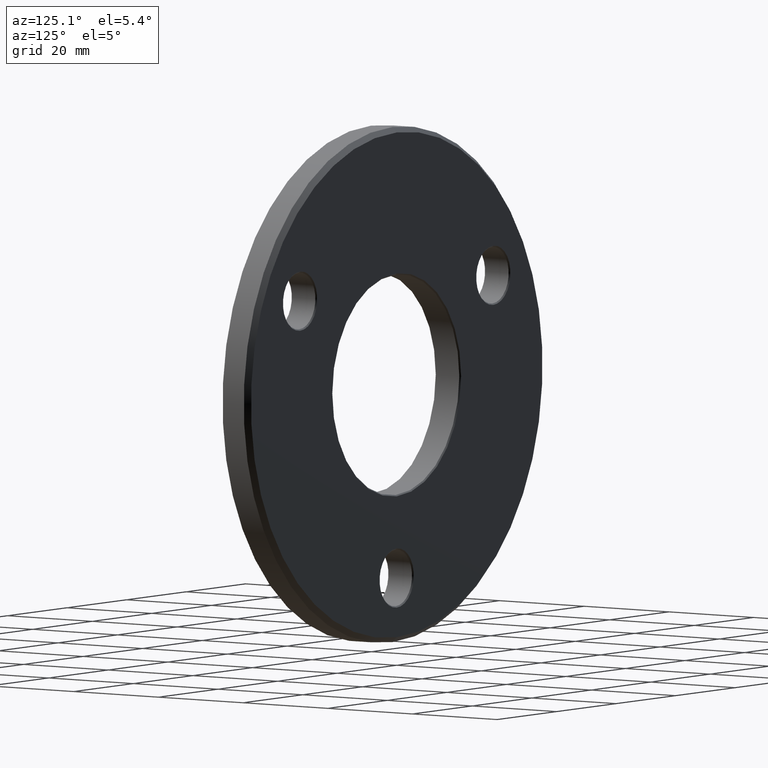
[diagram: clean part render]
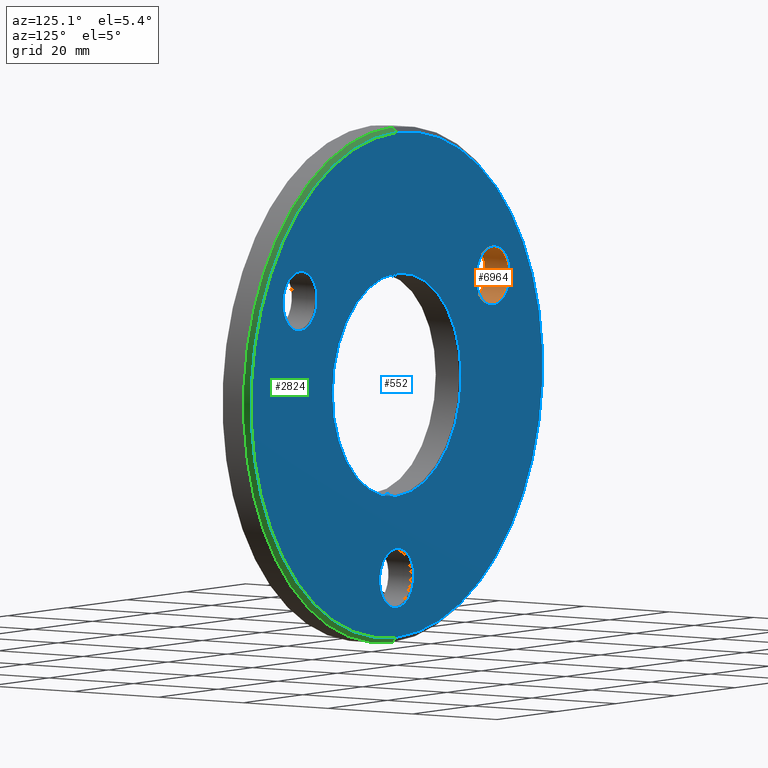
[diagram: same view with three faces highlighted in distinct colors, each labeled with its STEP entity id]
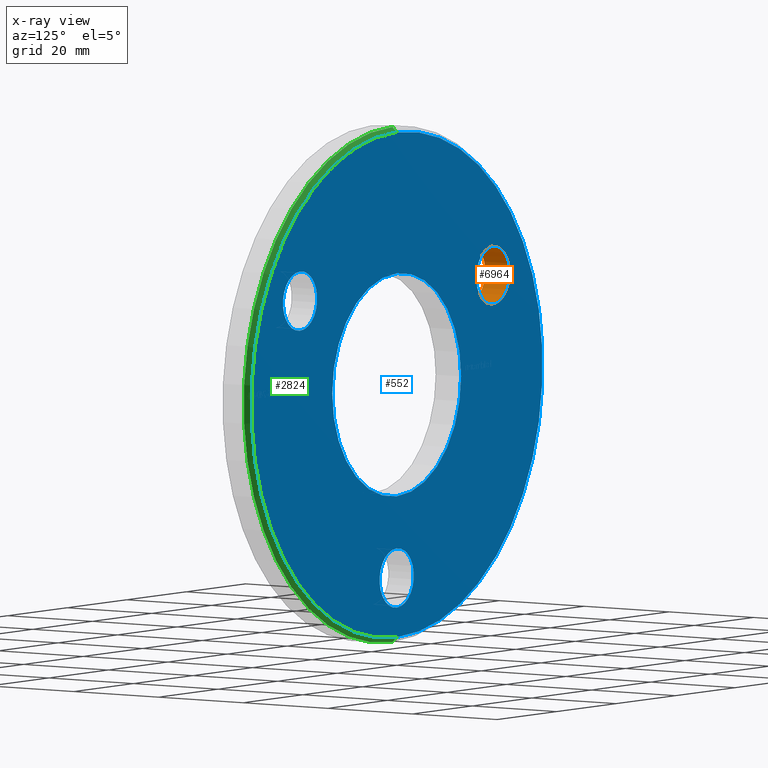
[diagram: x-ray of the same camera — body ghosted, the three highlighted faces saturated]
A machine part, auxiliary view with three faces highlighted in distinct colors.
The next image is the same camera in x-ray (body ghosted, the three faces saturated) — at least one of them is partly hidden behind the body in this view.
Their STEP definitions:

[orange] entity #6964 — the highlighted cylindrical surface (edge-blend (fillet) strip) has radius 5.5 mm, axis along (-0, -1, -0).
#223 = LINE ( 'NONE', #729, #6857 ) ;
#261 = CARTESIAN_POINT ( 'NONE',  ( -32.47595264191643594, 0.2499999999999941436, 24.25000000000001421 ) ) ;
#729 = CARTESIAN_POINT ( 'NONE',  ( -32.47595264191643594, 6.000000000000000000, 13.25000000000002132 ) ) ;
#1257 = ORIENTED_EDGE ( 'NONE', *, *, #4962, .T. ) ;
#1948 = EDGE_CURVE ( 'NONE', #6976, #5661, #223, .T. ) ;
#2450 = ORIENTED_EDGE ( 'NONE', *, *, #6777, .T. ) ;
#3217 = DIRECTION ( 'NONE',  ( -0.000000000000000000, -1.000000000000000000, -0.000000000000000000 ) ) ;
#3298 = EDGE_LOOP ( 'NONE', ( #1257, #2450, #4837, #5366 ) ) ;
#3612 = VERTEX_POINT ( 'NONE', #261 ) ;
#4291 = CARTESIAN_POINT ( 'NONE',  ( -32.47595264191643594, 5.749999999999985789, 13.25000000000002132 ) ) ;
#4694 = AXIS2_PLACEMENT_3D ( 'NONE', #5230, #12899, #12992 ) ;
#4767 = VERTEX_POINT ( 'NONE', #11209 ) ;
#4800 = CARTESIAN_POINT ( 'NONE',  ( -32.47595264191643594, 0.2499999999999941436, 13.25000000000002132 ) ) ;
#4837 = ORIENTED_EDGE ( 'NONE', *, *, #13107, .T. ) ;
#4962 = EDGE_CURVE ( 'NONE', #6976, #4767, #12146, .T. ) ;
#5230 = CARTESIAN_POINT ( 'NONE',  ( -32.47595264191643594, 6.000000000000000000, 18.75000000000001776 ) ) ;
#5349 = VECTOR ( 'NONE', #6043, 1000.000000000000000 ) ;
#5359 = DIRECTION ( 'NONE',  ( 0.000000000000000000, 1.000000000000000000, 0.000000000000000000 ) ) ;
#5366 = ORIENTED_EDGE ( 'NONE', *, *, #1948, .F. ) ;
#5508 = AXIS2_PLACEMENT_3D ( 'NONE', #11922, #5359, #14139 ) ;
#5661 = VERTEX_POINT ( 'NONE', #4800 ) ;
#5688 = FACE_OUTER_BOUND ( 'NONE', #3298, .T. ) ;
#6043 = DIRECTION ( 'NONE',  ( -0.000000000000000000, -1.000000000000000000, -0.000000000000000000 ) ) ;
#6777 = EDGE_CURVE ( 'NONE', #4767, #3612, #6870, .T. ) ;
#6857 = VECTOR ( 'NONE', #3217, 1000.000000000000000 ) ;
#6870 = LINE ( 'NONE', #9405, #5349 ) ;
#6964 = ADVANCED_FACE ( 'NONE', ( #5688 ), #12028, .F. ) ;
#6976 = VERTEX_POINT ( 'NONE', #4291 ) ;
#9150 = CIRCLE ( 'NONE', #13025, 5.499999999999998224 ) ;
#9405 = CARTESIAN_POINT ( 'NONE',  ( -32.47595264191643594, 6.000000000000000000, 24.25000000000001421 ) ) ;
#11209 = CARTESIAN_POINT ( 'NONE',  ( -32.47595264191643594, 5.749999999999985789, 24.25000000000001421 ) ) ;
#11922 = CARTESIAN_POINT ( 'NONE',  ( -32.47595264191643594, 5.749999999999985789, 18.75000000000001776 ) ) ;
#12028 = CYLINDRICAL_SURFACE ( 'NONE', #4694, 5.499999999999996447 ) ;
#12146 = CIRCLE ( 'NONE', #5508, 5.499999999999998224 ) ;
#12812 = CARTESIAN_POINT ( 'NONE',  ( -32.47595264191643594, 0.2499999999999941436, 18.75000000000001776 ) ) ;
#12868 = DIRECTION ( 'NONE',  ( 0.000000000000000000, 0.000000000000000000, 1.000000000000000000 ) ) ;
#12899 = DIRECTION ( 'NONE',  ( -0.000000000000000000, -1.000000000000000000, -0.000000000000000000 ) ) ;
#12992 = DIRECTION ( 'NONE',  ( 0.000000000000000000, 0.000000000000000000, -1.000000000000000000 ) ) ;
#13025 = AXIS2_PLACEMENT_3D ( 'NONE', #12812, #14023, #12868 ) ;
#13107 = EDGE_CURVE ( 'NONE', #3612, #5661, #9150, .T. ) ;
#14023 = DIRECTION ( 'NONE',  ( -0.000000000000000000, -1.000000000000000000, -0.000000000000000000 ) ) ;
#14139 = DIRECTION ( 'NONE',  ( 0.000000000000000000, 0.000000000000000000, 1.000000000000000000 ) ) ;

[blue] entity #552 — the highlighted planar face has unit normal (0, 1, 0).
#76 = ORIENTED_EDGE ( 'NONE', *, *, #4931, .T. ) ;
#278 = DIRECTION ( 'NONE',  ( -0.000000000000000000, -1.000000000000000000, -0.000000000000000000 ) ) ;
#378 = CIRCLE ( 'NONE', #1521, 21.65000000000000213 ) ;
#382 = CARTESIAN_POINT ( 'NONE',  ( 0.000000000000000000, 6.000000000000000000, 0.000000000000000000 ) ) ;
#552 = ADVANCED_FACE ( 'NONE', ( #9009, #12258, #12756, #12425, #13294 ), #7073, .T. ) ;
#839 = CIRCLE ( 'NONE', #12655, 5.750000000000018652 ) ;
#1080 = DIRECTION ( 'NONE',  ( -0.000000000000000000, -1.000000000000000000, -0.000000000000000000 ) ) ;
#1117 = VERTEX_POINT ( 'NONE', #13926 ) ;
#1312 = DIRECTION ( 'NONE',  ( 0.000000000000000000, 0.000000000000000000, 1.000000000000000000 ) ) ;
#1466 = DIRECTION ( 'NONE',  ( 0.000000000000000000, 0.000000000000000000, 1.000000000000000000 ) ) ;
#1468 = EDGE_CURVE ( 'NONE', #13844, #13839, #6167, .T. ) ;
#1521 = AXIS2_PLACEMENT_3D ( 'NONE', #11017, #4470, #10120 ) ;
#1572 = ORIENTED_EDGE ( 'NONE', *, *, #7983, .T. ) ;
#1579 = DIRECTION ( 'NONE',  ( -0.000000000000000000, -1.000000000000000000, -0.000000000000000000 ) ) ;
#2121 = CARTESIAN_POINT ( 'NONE',  ( 0.000000000000000000, 6.000000000000000000, -31.74999999999997868 ) ) ;
#2315 = ORIENTED_EDGE ( 'NONE', *, *, #4698, .T. ) ;
#2417 = AXIS2_PLACEMENT_3D ( 'NONE', #13917, #3091, #12952 ) ;
#2885 = ORIENTED_EDGE ( 'NONE', *, *, #5135, .T. ) ;
#2926 = DIRECTION ( 'NONE',  ( 0.000000000000000000, 0.000000000000000000, 1.000000000000000000 ) ) ;
#2947 = AXIS2_PLACEMENT_3D ( 'NONE', #3219, #1080, #5417 ) ;
#3034 = ORIENTED_EDGE ( 'NONE', *, *, #10121, .T. ) ;
#3091 = DIRECTION ( 'NONE',  ( -0.000000000000000000, -1.000000000000000000, -0.000000000000000000 ) ) ;
#3144 = CARTESIAN_POINT ( 'NONE',  ( 6.062001655779400089E-15, 6.000000000000000000, 49.00000000000002132 ) ) ;
#3219 = CARTESIAN_POINT ( 'NONE',  ( 32.47595264191645015, 6.000000000000000000, 18.74999999999999645 ) ) ;
#3320 = AXIS2_PLACEMENT_3D ( 'NONE', #6549, #5404, #6452 ) ;
#3326 = CARTESIAN_POINT ( 'NONE',  ( 0.000000000000000000, 6.000000000000000000, -37.50000000000000000 ) ) ;
#3676 = EDGE_CURVE ( 'NONE', #13839, #13844, #13365, .T. ) ;
#3828 = DIRECTION ( 'NONE',  ( -0.000000000000000000, -1.000000000000000000, -0.000000000000000000 ) ) ;
#3878 = CARTESIAN_POINT ( 'NONE',  ( 0.000000000000000000, 6.000000000000000000, 0.000000000000000000 ) ) ;
#4125 = CIRCLE ( 'NONE', #9888, 5.750000000000018652 ) ;
#4138 = AXIS2_PLACEMENT_3D ( 'NONE', #10151, #5685, #13354 ) ;
#4470 = DIRECTION ( 'NONE',  ( -0.000000000000000000, -1.000000000000000000, -0.000000000000000000 ) ) ;
#4499 = ORIENTED_EDGE ( 'NONE', *, *, #5952, .T. ) ;
#4606 = ORIENTED_EDGE ( 'NONE', *, *, #10199, .T. ) ;
#4641 = VERTEX_POINT ( 'NONE', #7759 ) ;
#4698 = EDGE_CURVE ( 'NONE', #7713, #6718, #839, .T. ) ;
#4733 = EDGE_LOOP ( 'NONE', ( #11326, #9593 ) ) ;
#4769 = CIRCLE ( 'NONE', #3320, 5.750000000000018652 ) ;
#4889 = DIRECTION ( 'NONE',  ( 0.000000000000000000, 1.000000000000000000, 0.000000000000000000 ) ) ;
#4931 = EDGE_CURVE ( 'NONE', #4641, #1117, #4769, .T. ) ;
#5105 = VERTEX_POINT ( 'NONE', #13618 ) ;
#5135 = EDGE_CURVE ( 'NONE', #7382, #9121, #12131, .T. ) ;
#5404 = DIRECTION ( 'NONE',  ( -0.000000000000000000, -1.000000000000000000, -0.000000000000000000 ) ) ;
#5417 = DIRECTION ( 'NONE',  ( 0.000000000000000000, 0.000000000000000000, 1.000000000000000000 ) ) ;
#5685 = DIRECTION ( 'NONE',  ( 0.000000000000000000, 1.000000000000000000, 0.000000000000000000 ) ) ;
#5692 = EDGE_LOOP ( 'NONE', ( #2315, #6716 ) ) ;
#5952 = EDGE_CURVE ( 'NONE', #1117, #4641, #7135, .T. ) ;
#6167 = CIRCLE ( 'NONE', #6214, 49.00000000000002132 ) ;
#6214 = AXIS2_PLACEMENT_3D ( 'NONE', #382, #8103, #1466 ) ;
#6452 = DIRECTION ( 'NONE',  ( 0.000000000000000000, 0.000000000000000000, 1.000000000000000000 ) ) ;
#6549 = CARTESIAN_POINT ( 'NONE',  ( 32.47595264191645015, 6.000000000000000000, 18.74999999999999645 ) ) ;
#6716 = ORIENTED_EDGE ( 'NONE', *, *, #10909, .T. ) ;
#6718 = VERTEX_POINT ( 'NONE', #12788 ) ;
#7073 = PLANE ( 'NONE',  #12820 ) ;
#7135 = CIRCLE ( 'NONE', #2947, 5.750000000000018652 ) ;
#7382 = VERTEX_POINT ( 'NONE', #11995 ) ;
#7420 = DIRECTION ( 'NONE',  ( -0.000000000000000000, -1.000000000000000000, -0.000000000000000000 ) ) ;
#7713 = VERTEX_POINT ( 'NONE', #2121 ) ;
#7759 = CARTESIAN_POINT ( 'NONE',  ( 32.47595264191645015, 6.000000000000000000, 12.99999999999997691 ) ) ;
#7816 = EDGE_LOOP ( 'NONE', ( #4499, #76 ) ) ;
#7927 = VERTEX_POINT ( 'NONE', #14015 ) ;
#7944 = CARTESIAN_POINT ( 'NONE',  ( 0.000000000000000000, 6.000000000000000000, -37.50000000000000000 ) ) ;
#7983 = EDGE_CURVE ( 'NONE', #7927, #5105, #9129, .T. ) ;
#8042 = CARTESIAN_POINT ( 'NONE',  ( 0.000000000000000000, 6.000000000000000000, 21.65000000000000213 ) ) ;
#8103 = DIRECTION ( 'NONE',  ( 0.000000000000000000, 1.000000000000000000, 0.000000000000000000 ) ) ;
#8392 = AXIS2_PLACEMENT_3D ( 'NONE', #7944, #3828, #1312 ) ;
#9009 = FACE_OUTER_BOUND ( 'NONE', #4733, .T. ) ;
#9121 = VERTEX_POINT ( 'NONE', #8042 ) ;
#9129 = CIRCLE ( 'NONE', #2417, 5.750000000000018652 ) ;
#9298 = DIRECTION ( 'NONE',  ( 0.000000000000000000, -0.000000000000000000, 1.000000000000000000 ) ) ;
#9505 = CARTESIAN_POINT ( 'NONE',  ( 0.000000000000000000, 6.000000000000000000, 0.000000000000000000 ) ) ;
#9593 = ORIENTED_EDGE ( 'NONE', *, *, #1468, .T. ) ;
#9635 = EDGE_LOOP ( 'NONE', ( #1572, #4606 ) ) ;
#9713 = CARTESIAN_POINT ( 'NONE',  ( 0.000000000000000000, 6.000000000000000000, -49.00000000000002132 ) ) ;
#9888 = AXIS2_PLACEMENT_3D ( 'NONE', #10240, #1579, #12490 ) ;
#10120 = DIRECTION ( 'NONE',  ( 0.000000000000000000, 0.000000000000000000, 1.000000000000000000 ) ) ;
#10121 = EDGE_CURVE ( 'NONE', #9121, #7382, #378, .T. ) ;
#10151 = CARTESIAN_POINT ( 'NONE',  ( 0.000000000000000000, 6.000000000000000000, 0.000000000000000000 ) ) ;
#10199 = EDGE_CURVE ( 'NONE', #5105, #7927, #4125, .T. ) ;
#10240 = CARTESIAN_POINT ( 'NONE',  ( -32.47595264191643594, 6.000000000000000000, 18.75000000000001776 ) ) ;
#10909 = EDGE_CURVE ( 'NONE', #6718, #7713, #11139, .T. ) ;
#11017 = CARTESIAN_POINT ( 'NONE',  ( 0.000000000000000000, 6.000000000000000000, 0.000000000000000000 ) ) ;
#11023 = DIRECTION ( 'NONE',  ( 0.000000000000000000, 0.000000000000000000, 1.000000000000000000 ) ) ;
#11139 = CIRCLE ( 'NONE', #8392, 5.750000000000018652 ) ;
#11326 = ORIENTED_EDGE ( 'NONE', *, *, #3676, .T. ) ;
#11995 = CARTESIAN_POINT ( 'NONE',  ( 2.651360320154019665E-15, 6.000000000000000000, -21.65000000000000213 ) ) ;
#12131 = CIRCLE ( 'NONE', #13409, 21.65000000000000213 ) ;
#12258 = FACE_BOUND ( 'NONE', #13255, .T. ) ;
#12425 = FACE_BOUND ( 'NONE', #9635, .T. ) ;
#12490 = DIRECTION ( 'NONE',  ( 0.000000000000000000, 0.000000000000000000, 1.000000000000000000 ) ) ;
#12655 = AXIS2_PLACEMENT_3D ( 'NONE', #3326, #278, #11023 ) ;
#12756 = FACE_BOUND ( 'NONE', #7816, .T. ) ;
#12788 = CARTESIAN_POINT ( 'NONE',  ( 7.041719095097303559E-16, 6.000000000000000000, -43.25000000000001421 ) ) ;
#12820 = AXIS2_PLACEMENT_3D ( 'NONE', #3878, #4889, #9298 ) ;
#12952 = DIRECTION ( 'NONE',  ( 0.000000000000000000, 0.000000000000000000, 1.000000000000000000 ) ) ;
#13255 = EDGE_LOOP ( 'NONE', ( #3034, #2885 ) ) ;
#13294 = FACE_BOUND ( 'NONE', #5692, .T. ) ;
#13354 = DIRECTION ( 'NONE',  ( 0.000000000000000000, 0.000000000000000000, 1.000000000000000000 ) ) ;
#13365 = CIRCLE ( 'NONE', #4138, 49.00000000000002132 ) ;
#13409 = AXIS2_PLACEMENT_3D ( 'NONE', #9505, #7420, #2926 ) ;
#13618 = CARTESIAN_POINT ( 'NONE',  ( -32.47595264191643594, 6.000000000000000000, 12.99999999999999822 ) ) ;
#13839 = VERTEX_POINT ( 'NONE', #9713 ) ;
#13844 = VERTEX_POINT ( 'NONE', #3144 ) ;
#13917 = CARTESIAN_POINT ( 'NONE',  ( -32.47595264191643594, 6.000000000000000000, 18.75000000000001776 ) ) ;
#13926 = CARTESIAN_POINT ( 'NONE',  ( 32.47595264191645015, 6.000000000000000000, 24.50000000000001421 ) ) ;
#14015 = CARTESIAN_POINT ( 'NONE',  ( -32.47595264191643594, 6.000000000000000000, 24.50000000000003553 ) ) ;

[green] entity #2824 — the highlighted conical surface has half-angle 45 deg.
#338 = EDGE_LOOP ( 'NONE', ( #7543, #1845, #13032, #4950 ) ) ;
#382 = CARTESIAN_POINT ( 'NONE',  ( 0.000000000000000000, 6.000000000000000000, 0.000000000000000000 ) ) ;
#522 = FACE_OUTER_BOUND ( 'NONE', #338, .T. ) ;
#529 = LINE ( 'NONE', #3867, #6680 ) ;
#1466 = DIRECTION ( 'NONE',  ( 0.000000000000000000, 0.000000000000000000, 1.000000000000000000 ) ) ;
#1468 = EDGE_CURVE ( 'NONE', #13844, #13839, #6167, .T. ) ;
#1808 = DIRECTION ( 'NONE',  ( 0.000000000000000000, 0.000000000000000000, -1.000000000000000000 ) ) ;
#1845 = ORIENTED_EDGE ( 'NONE', *, *, #10294, .T. ) ;
#2824 = ADVANCED_FACE ( 'NONE', ( #522 ), #9606, .T. ) ;
#2941 = VERTEX_POINT ( 'NONE', #9615 ) ;
#3026 = DIRECTION ( 'NONE',  ( 0.000000000000000000, 0.000000000000000000, 1.000000000000000000 ) ) ;
#3144 = CARTESIAN_POINT ( 'NONE',  ( 6.062001655779400089E-15, 6.000000000000000000, 49.00000000000002132 ) ) ;
#3867 = CARTESIAN_POINT ( 'NONE',  ( 6.000769315822033304E-15, 6.000000000000000000, 49.00000000000002132 ) ) ;
#4524 = EDGE_CURVE ( 'NONE', #11650, #2941, #6806, .T. ) ;
#4683 = DIRECTION ( 'NONE',  ( 0.000000000000000000, -1.000000000000000000, 0.000000000000000000 ) ) ;
#4853 = CARTESIAN_POINT ( 'NONE',  ( 0.000000000000000000, 4.999999999999999112, -50.00000000000000000 ) ) ;
#4950 = ORIENTED_EDGE ( 'NONE', *, *, #8812, .F. ) ;
#5065 = DIRECTION ( 'NONE',  ( 8.659560562354844111E-17, -0.7071067811865549002, 0.7071067811865401342 ) ) ;
#5158 = DIRECTION ( 'NONE',  ( 0.000000000000000000, -0.7071067811865549002, -0.7071067811865401342 ) ) ;
#6102 = CARTESIAN_POINT ( 'NONE',  ( 0.000000000000000000, 6.000000000000000000, -49.00000000000002132 ) ) ;
#6167 = CIRCLE ( 'NONE', #6214, 49.00000000000002132 ) ;
#6214 = AXIS2_PLACEMENT_3D ( 'NONE', #382, #8103, #1466 ) ;
#6232 = DIRECTION ( 'NONE',  ( 0.000000000000000000, -1.000000000000000000, 0.000000000000000000 ) ) ;
#6680 = VECTOR ( 'NONE', #5065, 1000.000000000000000 ) ;
#6806 = CIRCLE ( 'NONE', #12394, 50.00000000000000000 ) ;
#6997 = CARTESIAN_POINT ( 'NONE',  ( 0.000000000000000000, 6.000000000000000000, 0.000000000000000000 ) ) ;
#7273 = CARTESIAN_POINT ( 'NONE',  ( 0.000000000000000000, 4.999999999999999112, 0.000000000000000000 ) ) ;
#7543 = ORIENTED_EDGE ( 'NONE', *, *, #1468, .F. ) ;
#7565 = LINE ( 'NONE', #6102, #13234 ) ;
#8103 = DIRECTION ( 'NONE',  ( 0.000000000000000000, 1.000000000000000000, 0.000000000000000000 ) ) ;
#8812 = EDGE_CURVE ( 'NONE', #13839, #11650, #7565, .T. ) ;
#9606 = CONICAL_SURFACE ( 'NONE', #11732, 49.00000000000002132, 0.7853981633974378429 ) ;
#9615 = CARTESIAN_POINT ( 'NONE',  ( 6.123233995736766085E-15, 4.999999999999999112, 50.00000000000000000 ) ) ;
#9713 = CARTESIAN_POINT ( 'NONE',  ( 0.000000000000000000, 6.000000000000000000, -49.00000000000002132 ) ) ;
#10294 = EDGE_CURVE ( 'NONE', #13844, #2941, #529, .T. ) ;
#11650 = VERTEX_POINT ( 'NONE', #4853 ) ;
#11732 = AXIS2_PLACEMENT_3D ( 'NONE', #6997, #4683, #1808 ) ;
#12394 = AXIS2_PLACEMENT_3D ( 'NONE', #7273, #6232, #3026 ) ;
#13032 = ORIENTED_EDGE ( 'NONE', *, *, #4524, .F. ) ;
#13234 = VECTOR ( 'NONE', #5158, 1000.000000000000000 ) ;
#13839 = VERTEX_POINT ( 'NONE', #9713 ) ;
#13844 = VERTEX_POINT ( 'NONE', #3144 ) ;